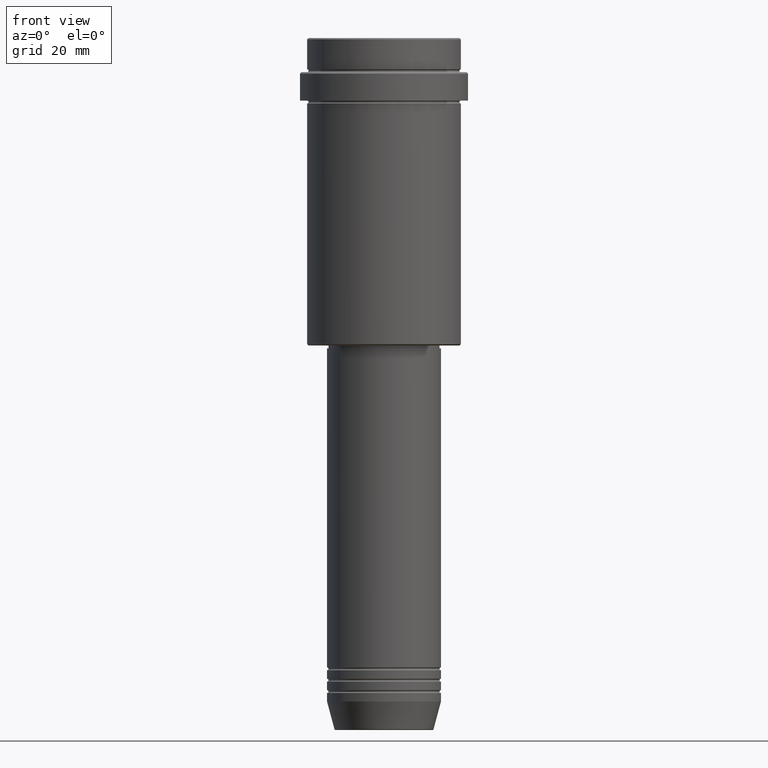
[diagram: clean part render]
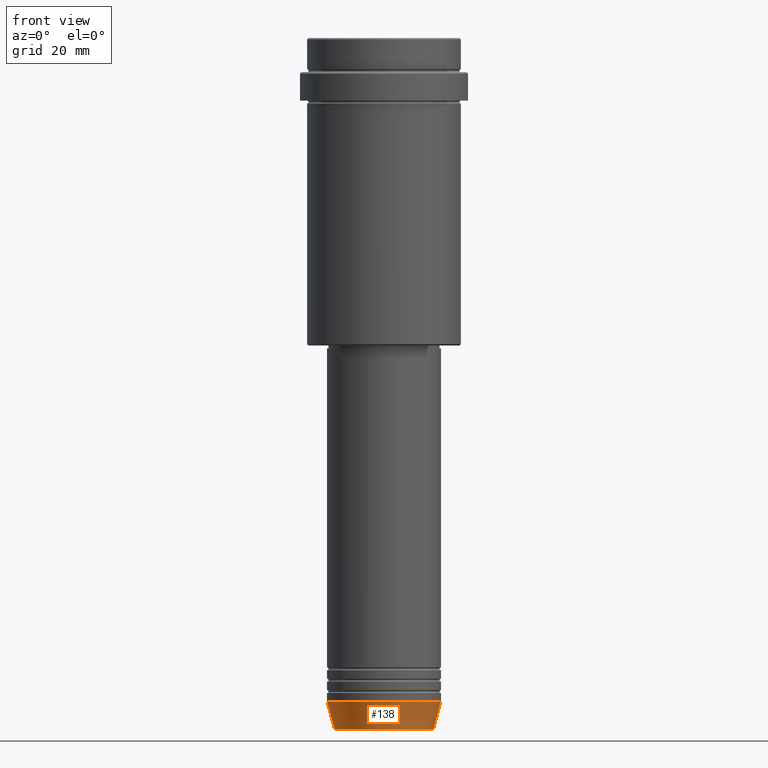
[diagram: same view with one face highlighted and labeled with its STEP entity id]
A machine part, front view. The second image highlights one B-rep face of the part: STEP entity #138.
In plain terms, the highlighted conical surface has half-angle 15 deg.
Its self-contained STEP definition (entity closure, byte-faithful):
#54 = FACE_OUTER_BOUND ( 'NONE', #1216, .T. ) ;
#57 = AXIS2_PLACEMENT_3D ( 'NONE', #673, #890, #451 ) ;
#63 = DIRECTION ( 'NONE',  ( -0.2588190451025205729, 3.169619151431761860E-17, 0.9659258262890683122 ) ) ;
#64 = DIRECTION ( 'NONE',  ( -0.000000000000000000, -0.000000000000000000, 1.000000000000000000 ) ) ;
#88 = CARTESIAN_POINT ( 'NONE',  ( -17.41980749484381974, 2.291302373663531126E-15, -242.6294095225512990 ) ) ;
#119 = EDGE_CURVE ( 'NONE', #200, #816, #1314, .T. ) ;
#122 = AXIS2_PLACEMENT_3D ( 'NONE', #360, #64, #500 ) ;
#126 = VECTOR ( 'NONE', #460, 1000.000000000000114 ) ;
#138 = ADVANCED_FACE ( 'NONE', ( #54 ), #756, .T. ) ;
#200 = VERTEX_POINT ( 'NONE', #88 ) ;
#221 = CARTESIAN_POINT ( 'NONE',  ( 20.00000000000000000, 0.000000000000000000, -233.0000000000000284 ) ) ;
#276 = CARTESIAN_POINT ( 'NONE',  ( 17.41980749484381974, 0.000000000000000000, -242.6294095225512990 ) ) ;
#328 = CIRCLE ( 'NONE', #57, 20.00000000000000000 ) ;
#360 = CARTESIAN_POINT ( 'NONE',  ( 0.000000000000000000, 0.000000000000000000, -233.0000000000000284 ) ) ;
#451 = DIRECTION ( 'NONE',  ( 1.000000000000000000, 0.000000000000000000, 0.000000000000000000 ) ) ;
#460 = DIRECTION ( 'NONE',  ( 0.2588190451025205729, 0.000000000000000000, 0.9659258262890683122 ) ) ;
#469 = LINE ( 'NONE', #221, #126 ) ;
#500 = DIRECTION ( 'NONE',  ( 1.000000000000000000, 0.000000000000000000, 0.000000000000000000 ) ) ;
#588 = ORIENTED_EDGE ( 'NONE', *, *, #725, .F. ) ;
#597 = LINE ( 'NONE', #607, #833 ) ;
#607 = CARTESIAN_POINT ( 'NONE',  ( -20.00000000000000000, 2.449293598294706513E-15, -233.0000000000000284 ) ) ;
#673 = CARTESIAN_POINT ( 'NONE',  ( 0.000000000000000000, 0.000000000000000000, -233.0000000000000284 ) ) ;
#725 = EDGE_CURVE ( 'NONE', #753, #804, #328, .T. ) ;
#743 = EDGE_CURVE ( 'NONE', #816, #804, #469, .T. ) ;
#753 = VERTEX_POINT ( 'NONE', #1124 ) ;
#756 = CONICAL_SURFACE ( 'NONE', #122, 20.00000000000000000, 0.2617993877991492413 ) ;
#768 = CARTESIAN_POINT ( 'NONE',  ( 20.00000000000000000, 0.000000000000000000, -233.0000000000000284 ) ) ;
#804 = VERTEX_POINT ( 'NONE', #768 ) ;
#810 = DIRECTION ( 'NONE',  ( 1.000000000000000000, 0.000000000000000000, 0.000000000000000000 ) ) ;
#816 = VERTEX_POINT ( 'NONE', #276 ) ;
#833 = VECTOR ( 'NONE', #63, 1000.000000000000114 ) ;
#854 = ORIENTED_EDGE ( 'NONE', *, *, #1307, .F. ) ;
#890 = DIRECTION ( 'NONE',  ( -0.000000000000000000, -0.000000000000000000, 1.000000000000000000 ) ) ;
#919 = DIRECTION ( 'NONE',  ( -0.000000000000000000, -0.000000000000000000, 1.000000000000000000 ) ) ;
#1016 = ORIENTED_EDGE ( 'NONE', *, *, #119, .T. ) ;
#1024 = ORIENTED_EDGE ( 'NONE', *, *, #743, .T. ) ;
#1124 = CARTESIAN_POINT ( 'NONE',  ( -20.00000000000000000, 2.449293598294706513E-15, -233.0000000000000284 ) ) ;
#1126 = AXIS2_PLACEMENT_3D ( 'NONE', #1360, #919, #810 ) ;
#1216 = EDGE_LOOP ( 'NONE', ( #854, #1016, #1024, #588 ) ) ;
#1307 = EDGE_CURVE ( 'NONE', #200, #753, #597, .T. ) ;
#1314 = CIRCLE ( 'NONE', #1126, 17.41980749484381974 ) ;
#1360 = CARTESIAN_POINT ( 'NONE',  ( 0.000000000000000000, 0.000000000000000000, -242.6294095225512990 ) ) ;